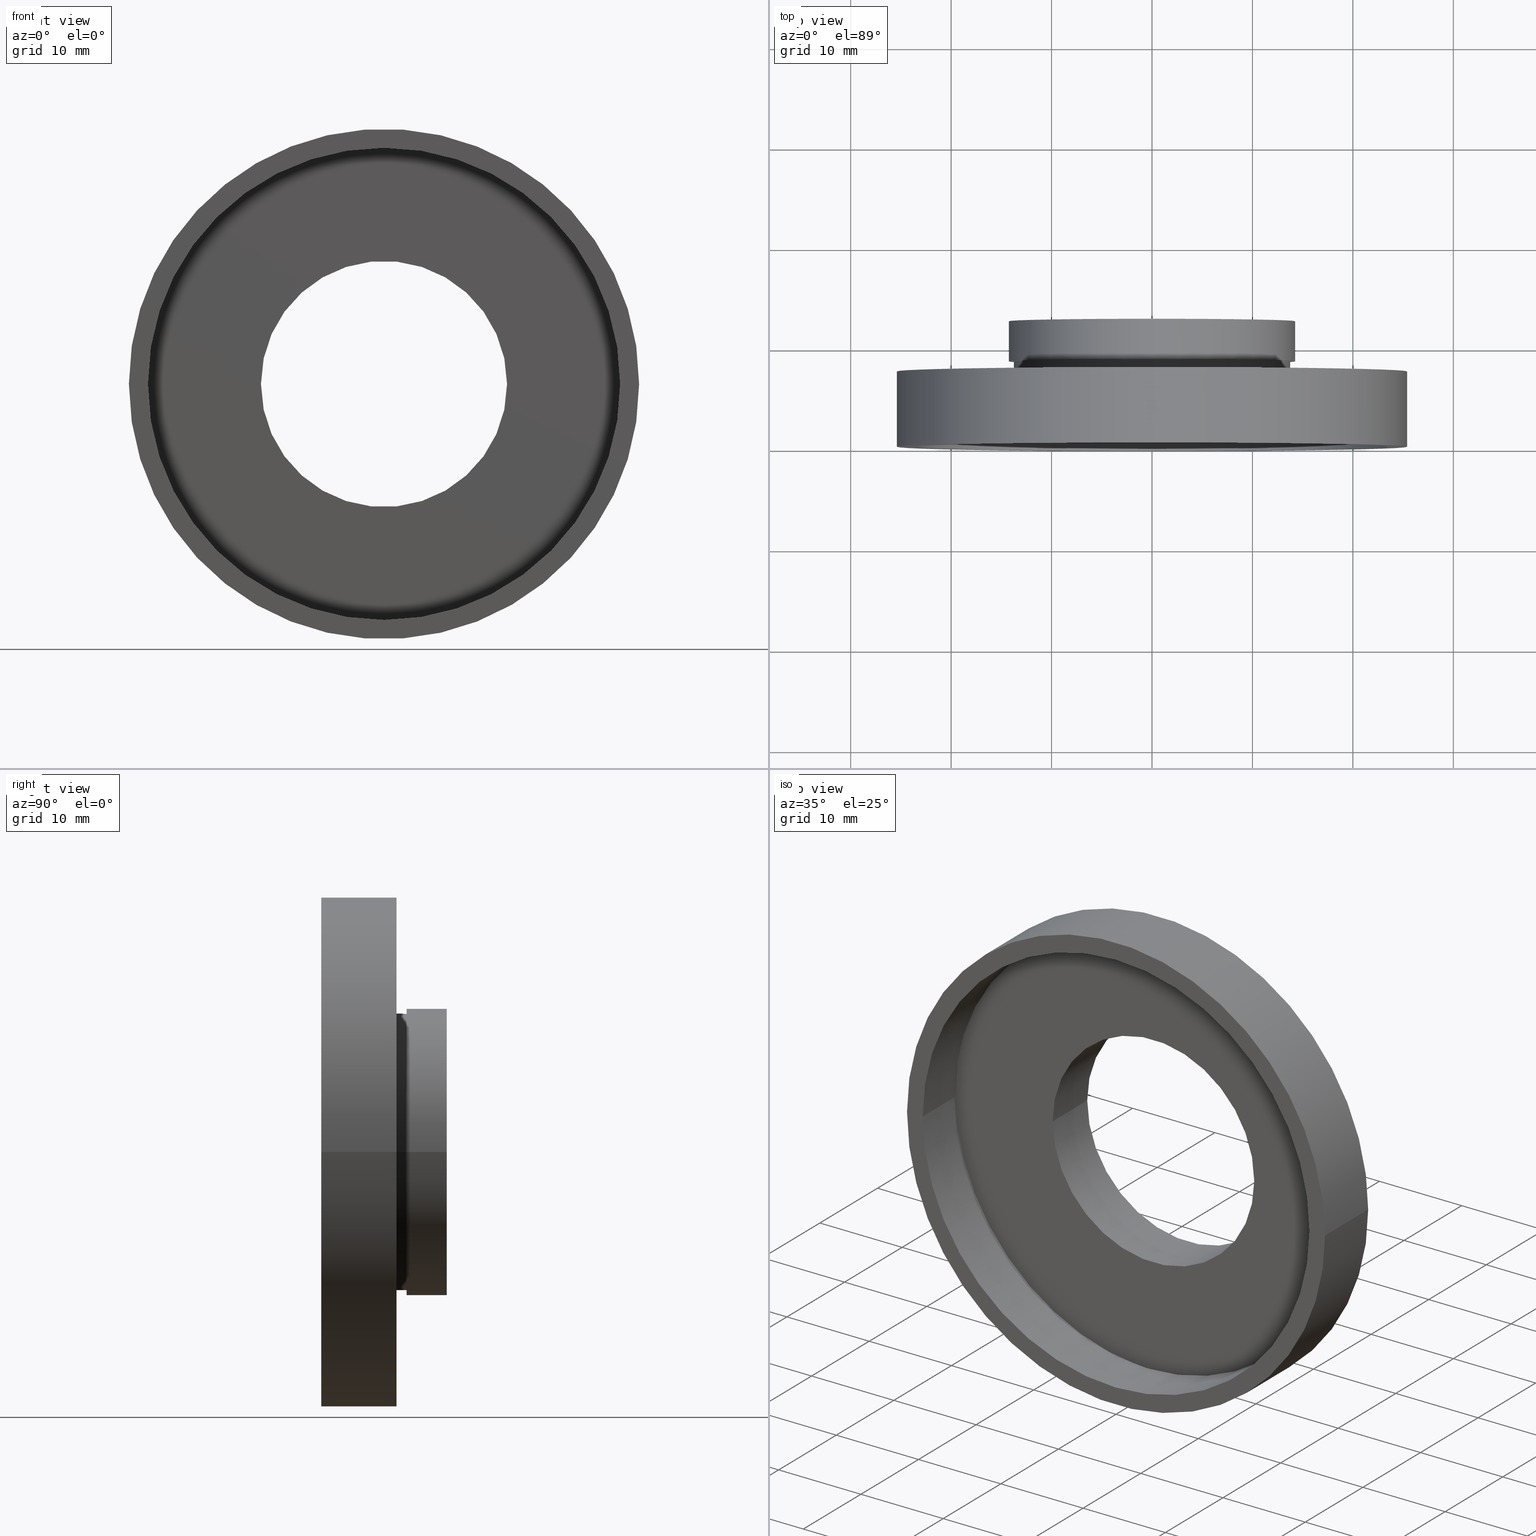
[diagram: canonical four-view strip — front | top / right | iso, engineering-drawing reading convention]
A machine part, canonical four-view strip (front | top / right | iso — engineering-drawing reading convention). The complete STEP part file that produces these views, byte-faithful:
ISO-10303-21;
HEADER;
FILE_DESCRIPTION (( 'STEP AP214' ),
    '1' );
FILE_NAME ('504024.STEP',
    '2019-09-30T09:07:26',
    ( 'user' ),
    ( '΢���й�' ),
    'SwSTEP 2.0',
    'SolidWorks 2016',
    '' );
FILE_SCHEMA (( 'AUTOMOTIVE_DESIGN' ));
ENDSEC;

DATA;
#1 = AXIS2_PLACEMENT_3D ( 'NONE', #552, #2, #177 ) ;
#2 = DIRECTION ( 'NONE',  ( -1.224646799147351000E-016, 1.000000000000000000, 0.0000000000000000000 ) ) ;
#3 = CARTESIAN_POINT ( 'NONE',  ( -12.24999999999999800, 6.499999999999995600, 0.0000000000000000000 ) ) ;
#4 = MECHANICAL_DESIGN_GEOMETRIC_PRESENTATION_REPRESENTATION (  '', ( #198 ), #471 ) ;
#5 =( NAMED_UNIT ( * ) SI_UNIT ( $, .STERADIAN. ) SOLID_ANGLE_UNIT ( ) );
#6 = EDGE_CURVE ( 'NONE', #390, #296, #148, .T. ) ;
#7 = VERTEX_POINT ( 'NONE', #252 ) ;
#8 = EDGE_LOOP ( 'NONE', ( #214, #319 ) ) ;
#9 = LINE ( 'NONE', #565, #360 ) ;
#10 = COLOUR_RGB ( '',1.000000000000000000, 1.000000000000000000, 1.000000000000000000 ) ;
#11 = CARTESIAN_POINT ( 'NONE',  ( 1.149455719078123100E-015, 7.499999999999996400, 0.0000000000000000000 ) ) ;
#12 = EDGE_CURVE ( 'NONE', #305, #146, #103, .T. ) ;
#13 = DIRECTION ( 'NONE',  ( 1.000000000000000000, 0.0000000000000000000, 0.0000000000000000000 ) ) ;
#14 = PRESENTATION_LAYER_ASSIGNMENT (  '', '', ( #52 ) ) ;
#15 = EDGE_LOOP ( 'NONE', ( #510, #473 ) ) ;
#16 = FILL_AREA_STYLE ('',( #265 ) ) ;
#17 = CIRCLE ( 'NONE', #264, 24.10000000000000100 ) ;
#18 = DIRECTION ( 'NONE',  ( -1.000000000000000000, -1.224646799147351200E-016, 0.0000000000000000000 ) ) ;
#19 = CARTESIAN_POINT ( 'NONE',  ( -13.74999999999999800, 7.499999999999996400, 0.0000000000000000000 ) ) ;
#20 = ADVANCED_FACE ( 'NONE', ( #37 ), #322, .T. ) ;
#21 = SURFACE_SIDE_STYLE ('',( #391 ) ) ;
#22 = DIRECTION ( 'NONE',  ( -1.224646799147351000E-016, 1.000000000000000000, -0.0000000000000000000 ) ) ;
#23 = ORIENTED_EDGE ( 'NONE', *, *, #117, .T. ) ;
#24 = DIRECTION ( 'NONE',  ( -1.000000000000000000, -1.365923996832131600E-016, 0.0000000000000000000 ) ) ;
#25 = EDGE_LOOP ( 'NONE', ( #432, #575, #439, #549 ) ) ;
#26 = AXIS2_PLACEMENT_3D ( 'NONE', #413, #232, #579 ) ;
#27 = LINE ( 'NONE', #123, #604 ) ;
#28 = ADVANCED_FACE ( 'NONE', ( #308 ), #169, .T. ) ;
#29 = CIRCLE ( 'NONE', #614, 23.50000000000000000 ) ;
#30 =( NAMED_UNIT ( * ) PLANE_ANGLE_UNIT ( ) SI_UNIT ( $, .RADIAN. ) );
#31 = ADVANCED_FACE ( 'NONE', ( #318, #92 ), #33, .F. ) ;
#32 = DIRECTION ( 'NONE',  ( -1.224646799147351000E-016, 1.000000000000000000, -0.0000000000000000000 ) ) ;
#33 = PLANE ( 'NONE',  #341 ) ;
#34 = CARTESIAN_POINT ( 'NONE',  ( 0.0000000000000000000, 16.88601823708207700, 0.0000000000000000000 ) ) ;
#35 = UNCERTAINTY_MEASURE_WITH_UNIT (LENGTH_MEASURE( 1.000000000000000100E-005 ), #237, 'distance_accuracy_value', 'NONE');
#36 = EDGE_CURVE ( 'NONE', #296, #390, #270, .T. ) ;
#37 = FACE_OUTER_BOUND ( 'NONE', #486, .T. ) ;
#38 = EDGE_CURVE ( 'NONE', #445, #216, #511, .T. ) ;
#39 = ORIENTED_EDGE ( 'NONE', *, *, #6, .F. ) ;
#40 = STYLED_ITEM ( 'NONE', ( #61 ), #536 ) ;
#41 = FACE_OUTER_BOUND ( 'NONE', #358, .T. ) ;
#42 = DIRECTION ( 'NONE',  ( -1.224646799147351000E-016, 1.000000000000000000, 0.0000000000000000000 ) ) ;
#43 = EDGE_CURVE ( 'NONE', #410, #102, #243, .T. ) ;
#44 = CIRCLE ( 'NONE', #583, 13.75000000000000000 ) ;
#45 = DIRECTION ( 'NONE',  ( -1.224646799147351000E-016, 1.000000000000000000, -0.0000000000000000000 ) ) ;
#46 = ADVANCED_BREP_SHAPE_REPRESENTATION ( '504024', ( #384, #367 ), #485 ) ;
#47 = DIRECTION ( 'NONE',  ( -1.224646799147351000E-016, 1.000000000000000000, -0.0000000000000000000 ) ) ;
#48 = FILL_AREA_STYLE_COLOUR ( '', #10 ) ;
#49 =( LENGTH_UNIT ( ) NAMED_UNIT ( * ) SI_UNIT ( .MILLI., .METRE. ) );
#50 = EDGE_CURVE ( 'NONE', #354, #461, #590, .T. ) ;
#51 = EDGE_LOOP ( 'NONE', ( #424, #327, #386, #474 ) ) ;
#52 = STYLED_ITEM ( 'NONE', ( #77 ), #488 ) ;
#53 = CYLINDRICAL_SURFACE ( 'NONE', #449, 12.25000000000000000 ) ;
#54 = CARTESIAN_POINT ( 'NONE',  ( 0.0000000000000000000, 16.88601823708207700, 0.0000000000000000000 ) ) ;
#55 = EDGE_CURVE ( 'NONE', #305, #106, #469, .T. ) ;
#56 = PLANE ( 'NONE',  #325 ) ;
#57 = EDGE_CURVE ( 'NONE', #233, #102, #492, .T. ) ;
#58 = DIRECTION ( 'NONE',  ( -1.224646799147351000E-016, 1.000000000000000000, -0.0000000000000000000 ) ) ;
#59 = CIRCLE ( 'NONE', #436, 24.10000000000000100 ) ;
#60 = CARTESIAN_POINT ( 'NONE',  ( 23.50000000000000700, 5.499999999999999100, 2.877919977996281100E-015 ) ) ;
#61 = PRESENTATION_STYLE_ASSIGNMENT (( #416 ) ) ;
#62 = AXIS2_PLACEMENT_3D ( 'NONE', #129, #240, #82 ) ;
#63 = ADVANCED_FACE ( 'NONE', ( #466 ), #297, .T. ) ;
#64 = DIRECTION ( 'NONE',  ( 1.224646799147351000E-016, -1.000000000000000000, 0.0000000000000000000 ) ) ;
#65 = DIRECTION ( 'NONE',  ( -1.224646799147351000E-016, 1.000000000000000000, -0.0000000000000000000 ) ) ;
#66 =( NAMED_UNIT ( * ) PLANE_ANGLE_UNIT ( ) SI_UNIT ( $, .RADIAN. ) );
#67 = CARTESIAN_POINT ( 'NONE',  ( 1.394385078907593400E-015, 5.499999999999994700, 0.0000000000000000000 ) ) ;
#68 = ORIENTED_EDGE ( 'NONE', *, *, #491, .F. ) ;
#69 = FACE_OUTER_BOUND ( 'NONE', #380, .T. ) ;
#70 = ORIENTED_EDGE ( 'NONE', *, *, #100, .T. ) ;
#71 = EDGE_CURVE ( 'NONE', #138, #269, #476, .T. ) ;
#72 = EDGE_CURVE ( 'NONE', #525, #410, #59, .T. ) ;
#73 = CARTESIAN_POINT ( 'NONE',  ( 0.0000000000000000000, 16.88601823708207700, 0.0000000000000000000 ) ) ;
#74 = CARTESIAN_POINT ( 'NONE',  ( 1.271920398992858200E-015, 6.499999999999995600, 0.0000000000000000000 ) ) ;
#75 = AXIS2_PLACEMENT_3D ( 'NONE', #420, #246, #187 ) ;
#76 = ORIENTED_EDGE ( 'NONE', *, *, #50, .F. ) ;
#77 = PRESENTATION_STYLE_ASSIGNMENT (( #603 ) ) ;
#78 = DIRECTION ( 'NONE',  ( -1.224646799147351000E-016, 1.000000000000000000, -0.0000000000000000000 ) ) ;
#79 = EDGE_CURVE ( 'NONE', #146, #248, #223, .T. ) ;
#80 = DIRECTION ( 'NONE',  ( -1.000000000000000000, -1.365923996832131600E-016, 0.0000000000000000000 ) ) ;
#81 = ADVANCED_FACE ( 'NONE', ( #41 ), #381, .T. ) ;
#82 = DIRECTION ( 'NONE',  ( -1.000000000000000000, -1.476360405086644300E-016, 0.0000000000000000000 ) ) ;
#83 = DIRECTION ( 'NONE',  ( 1.224646799147351000E-016, -1.000000000000000000, 0.0000000000000000000 ) ) ;
#84 = ORIENTED_EDGE ( 'NONE', *, *, #253, .F. ) ;
#85 = EDGE_CURVE ( 'NONE', #538, #182, #175, .T. ) ;
#86 = DIRECTION ( 'NONE',  ( -1.000000000000000000, -1.416100796715760600E-016, 0.0000000000000000000 ) ) ;
#87 = ORIENTED_EDGE ( 'NONE', *, *, #447, .F. ) ;
#88 = PLANE ( 'NONE',  #1 ) ;
#89 = AXIS2_PLACEMENT_3D ( 'NONE', #574, #588, #596 ) ;
#90 = CARTESIAN_POINT ( 'NONE',  ( 1.394385078907593200E-015, 5.499999999999996400, 0.0000000000000000000 ) ) ;
#91 = CARTESIAN_POINT ( 'NONE',  ( -13.75000000000000000, 16.88601823708207700, 0.0000000000000000000 ) ) ;
#92 = FACE_OUTER_BOUND ( 'NONE', #516, .T. ) ;
#93 = CARTESIAN_POINT ( 'NONE',  ( 1.149455719078122700E-015, 7.499999999999998200, 0.0000000000000000000 ) ) ;
#94 = STYLED_ITEM ( 'NONE', ( #517 ), #607 ) ;
#95 = CARTESIAN_POINT ( 'NONE',  ( 1.026991039163387700E-015, 8.499999999999998200, 0.0000000000000000000 ) ) ;
#96 = ORIENTED_EDGE ( 'NONE', *, *, #85, .F. ) ;
#97 = FACE_OUTER_BOUND ( 'NONE', #51, .T. ) ;
#98 = COLOUR_RGB ( '',1.000000000000000000, 1.000000000000000000, 1.000000000000000000 ) ;
#99 = VECTOR ( 'NONE', #435, 1000.000000000000000 ) ;
#100 = EDGE_CURVE ( 'NONE', #115, #417, #576, .T. ) ;
#101 = CARTESIAN_POINT ( 'NONE',  ( 25.39999999999999900, 16.88601823708208000, 3.110602869834276900E-015 ) ) ;
#102 = VERTEX_POINT ( 'NONE', #218 ) ;
#103 = LINE ( 'NONE', #535, #306 ) ;
#104 = AXIS2_PLACEMENT_3D ( 'NONE', #314, #45, #581 ) ;
#105 = CIRCLE ( 'NONE', #392, 14.25000000000000200 ) ;
#106 = VERTEX_POINT ( 'NONE', #19 ) ;
#107 = DIRECTION ( 'NONE',  ( -1.224646799147351000E-016, 1.000000000000000000, -0.0000000000000000000 ) ) ;
#108 =( NAMED_UNIT ( * ) SI_UNIT ( $, .STERADIAN. ) SOLID_ANGLE_UNIT ( ) );
#109 = ORIENTED_EDGE ( 'NONE', *, *, #79, .F. ) ;
#110 = EDGE_LOOP ( 'NONE', ( #399, #168 ) ) ;
#111 = DIRECTION ( 'NONE',  ( -1.224646799147351000E-016, 1.000000000000000000, -0.0000000000000000000 ) ) ;
#112 = UNCERTAINTY_MEASURE_WITH_UNIT (LENGTH_MEASURE( 1.000000000000000100E-005 ), #397, 'distance_accuracy_value', 'NONE');
#113 = VECTOR ( 'NONE', #515, 1000.000000000000000 ) ;
#114 = EDGE_CURVE ( 'NONE', #106, #305, #44, .T. ) ;
#115 = VERTEX_POINT ( 'NONE', #594 ) ;
#116 = FILL_AREA_STYLE ('',( #368 ) ) ;
#117 = EDGE_CURVE ( 'NONE', #417, #269, #208, .T. ) ;
#118 =( NAMED_UNIT ( * ) SI_UNIT ( $, .STERADIAN. ) SOLID_ANGLE_UNIT ( ) );
#119 = DIRECTION ( 'NONE',  ( -1.224646799147351000E-016, 1.000000000000000000, -0.0000000000000000000 ) ) ;
#120 = CARTESIAN_POINT ( 'NONE',  ( -23.50000000000000000, 16.88601823708207300, 0.0000000000000000000 ) ) ;
#121 = SURFACE_SIDE_STYLE ('',( #345 ) ) ;
#122 = EDGE_CURVE ( 'NONE', #216, #390, #139, .T. ) ;
#123 = CARTESIAN_POINT ( 'NONE',  ( -25.39999999999999900, 16.88601823708207300, 0.0000000000000000000 ) ) ;
#124 = DIRECTION ( 'NONE',  ( -1.224646799147351000E-016, 1.000000000000000000, -0.0000000000000000000 ) ) ;
#125 = PRESENTATION_STYLE_ASSIGNMENT (( #545 ) ) ;
#126 = ORIENTED_EDGE ( 'NONE', *, *, #114, .F. ) ;
#127 = FACE_BOUND ( 'NONE', #110, .T. ) ;
#128 = ORIENTED_EDGE ( 'NONE', *, *, #43, .F. ) ;
#129 = CARTESIAN_POINT ( 'NONE',  ( 0.0000000000000000000, 16.88601823708207700, 0.0000000000000000000 ) ) ;
#130 = FILL_AREA_STYLE ('',( #503 ) ) ;
#131 =( NAMED_UNIT ( * ) SI_UNIT ( $, .STERADIAN. ) SOLID_ANGLE_UNIT ( ) );
#132 = FILL_AREA_STYLE_COLOUR ( '', #98 ) ;
#133 = CARTESIAN_POINT ( 'NONE',  ( 14.25000000000000400, 8.500000000000000000, 0.0000000000000000000 ) ) ;
#134 = EDGE_CURVE ( 'NONE', #445, #296, #27, .T. ) ;
#135 = DIRECTION ( 'NONE',  ( -1.224646799147351000E-016, 1.000000000000000000, -0.0000000000000000000 ) ) ;
#136 = STYLED_ITEM ( 'NONE', ( #278 ), #20 ) ;
#137 = SURFACE_STYLE_FILL_AREA ( #238 ) ;
#138 = VERTEX_POINT ( 'NONE', #421 ) ;
#139 = LINE ( 'NONE', #101, #210 ) ;
#140 = DIRECTION ( 'NONE',  ( -1.000000000000000000, -1.079703408284319800E-016, 0.0000000000000000000 ) ) ;
#141 = CARTESIAN_POINT ( 'NONE',  ( 0.0000000000000000000, 16.88601823708207700, 0.0000000000000000000 ) ) ;
#142 = AXIS2_PLACEMENT_3D ( 'NONE', #519, #342, #180 ) ;
#143 = ADVANCED_FACE ( 'NONE', ( #97 ), #203, .F. ) ;
#144 = CARTESIAN_POINT ( 'NONE',  ( 2.067940818438636500E-015, -3.469446951953614200E-015, 0.0000000000000000000 ) ) ;
#145 = UNCERTAINTY_MEASURE_WITH_UNIT (LENGTH_MEASURE( 1.000000000000000100E-005 ), #293, 'distance_accuracy_value', 'NONE');
#146 = VERTEX_POINT ( 'NONE', #166 ) ;
#147 = VERTEX_POINT ( 'NONE', #3 ) ;
#148 = CIRCLE ( 'NONE', #151, 25.39999999999999900 ) ;
#149 = ADVANCED_FACE ( 'NONE', ( #562, #533 ), #618, .F. ) ;
#150 = DIRECTION ( 'NONE',  ( -1.000000000000000000, 0.0000000000000000000, 0.0000000000000000000 ) ) ;
#151 = AXIS2_PLACEMENT_3D ( 'NONE', #548, #505, #534 ) ;
#152 = AXIS2_PLACEMENT_3D ( 'NONE', #463, #315, #407 ) ;
#153 =( NAMED_UNIT ( * ) PLANE_ANGLE_UNIT ( ) SI_UNIT ( $, .RADIAN. ) );
#154 = PRODUCT_DEFINITION_CONTEXT ( 'detailed design', #428, 'design' ) ;
#155 = COLOUR_RGB ( '',1.000000000000000000, 1.000000000000000000, 1.000000000000000000 ) ;
#156 = VERTEX_POINT ( 'NONE', #60 ) ;
#157 = CIRCLE ( 'NONE', #245, 12.25000000000000000 ) ;
#158 = FILL_AREA_STYLE ('',( #385 ) ) ;
#159 = EDGE_CURVE ( 'NONE', #115, #138, #624, .T. ) ;
#160 = ORIENTED_EDGE ( 'NONE', *, *, #613, .T. ) ;
#161 = EDGE_LOOP ( 'NONE', ( #343, #350 ) ) ;
#162 = VECTOR ( 'NONE', #78, 1000.000000000000000 ) ;
#163 = VECTOR ( 'NONE', #470, 1000.000000000000000 ) ;
#164 = UNCERTAINTY_MEASURE_WITH_UNIT (LENGTH_MEASURE( 1.000000000000000100E-005 ), #478, 'distance_accuracy_value', 'NONE');
#165 = PRODUCT_RELATED_PRODUCT_CATEGORY ( 'part', '', ( #361 ) ) ;
#166 = CARTESIAN_POINT ( 'NONE',  ( 13.75000000000000200, 8.500000000000000000, 1.683889348827610700E-015 ) ) ;
#167 = DIRECTION ( 'NONE',  ( -1.000000000000000000, -1.079703408284319800E-016, 0.0000000000000000000 ) ) ;
#168 = ORIENTED_EDGE ( 'NONE', *, *, #592, .F. ) ;
#169 = CYLINDRICAL_SURFACE ( 'NONE', #299, 25.39999999999999900 ) ;
#170 = AXIS2_PLACEMENT_3D ( 'NONE', #481, #570, #183 ) ;
#171 = PRODUCT_DEFINITION ( 'δ֪', '', #302, #154 ) ;
#172 = ORIENTED_EDGE ( 'NONE', *, *, #412, .T. ) ;
#173 = DIRECTION ( 'NONE',  ( -1.000000000000000000, 0.0000000000000000000, 0.0000000000000000000 ) ) ;
#174 = ORIENTED_EDGE ( 'NONE', *, *, #57, .F. ) ;
#175 = LINE ( 'NONE', #572, #542 ) ;
#176 = CARTESIAN_POINT ( 'NONE',  ( 25.39999999999999900, 7.500000000000000000, 3.110602869834276900E-015 ) ) ;
#177 = DIRECTION ( 'NONE',  ( -1.000000000000000000, -1.224646799147351000E-016, 0.0000000000000000000 ) ) ;
#178 = CARTESIAN_POINT ( 'NONE',  ( -13.74999999999999800, 8.499999999999996400, 0.0000000000000000000 ) ) ;
#179 = UNCERTAINTY_MEASURE_WITH_UNIT (LENGTH_MEASURE( 1.000000000000000100E-005 ), #500, 'distance_accuracy_value', 'NONE');
#180 = DIRECTION ( 'NONE',  ( -1.000000000000000000, -1.416100796715760600E-016, 0.0000000000000000000 ) ) ;
#181 = EDGE_CURVE ( 'NONE', #410, #525, #569, .T. ) ;
#182 = VERTEX_POINT ( 'NONE', #504 ) ;
#183 = DIRECTION ( 'NONE',  ( -1.000000000000000000, -1.224646799147351000E-016, 0.0000000000000000000 ) ) ;
#184 = SURFACE_STYLE_FILL_AREA ( #16 ) ;
#185 = DIRECTION ( 'NONE',  ( -1.224646799147351000E-016, 1.000000000000000000, -0.0000000000000000000 ) ) ;
#186 = SHAPE_DEFINITION_REPRESENTATION ( #615, #46 ) ;
#187 = DIRECTION ( 'NONE',  ( -1.000000000000000000, -1.439604544379092800E-016, 0.0000000000000000000 ) ) ;
#188 = CARTESIAN_POINT ( 'NONE',  ( 24.10000000000000100, 16.88601823708208000, 2.951398785945121300E-015 ) ) ;
#189 = EDGE_LOOP ( 'NONE', ( #126, #501 ) ) ;
#190 = EDGE_CURVE ( 'NONE', #538, #147, #612, .T. ) ;
#191 = CARTESIAN_POINT ( 'NONE',  ( 0.0000000000000000000, 16.88601823708207700, 0.0000000000000000000 ) ) ;
#192 = ORIENTED_EDGE ( 'NONE', *, *, #348, .F. ) ;
#193 = VECTOR ( 'NONE', #135, 1000.000000000000000 ) ;
#194 = ORIENTED_EDGE ( 'NONE', *, *, #253, .T. ) ;
#195 = FACE_OUTER_BOUND ( 'NONE', #335, .T. ) ;
#196 = DIRECTION ( 'NONE',  ( -1.224646799147351000E-016, 1.000000000000000000, -0.0000000000000000000 ) ) ;
#197 = ADVANCED_FACE ( 'NONE', ( #320 ), #543, .T. ) ;
#198 = STYLED_ITEM ( 'NONE', ( #557 ), #46 ) ;
#199 = MECHANICAL_DESIGN_GEOMETRIC_PRESENTATION_REPRESENTATION (  '', ( #221 ), #207 ) ;
#200 = FILL_AREA_STYLE ('',( #132 ) ) ;
#201 = SURFACE_STYLE_FILL_AREA ( #200 ) ;
#202 = CARTESIAN_POINT ( 'NONE',  ( -14.25000000000000200, 12.49999999999999500, 0.0000000000000000000 ) ) ;
#203 = CYLINDRICAL_SURFACE ( 'NONE', #460, 23.50000000000000000 ) ;
#204 = SURFACE_SIDE_STYLE ('',( #339 ) ) ;
#205 = CARTESIAN_POINT ( 'NONE',  ( 1.271920398992858000E-015, 6.499999999999997300, 0.0000000000000000000 ) ) ;
#206 = UNCERTAINTY_MEASURE_WITH_UNIT (LENGTH_MEASURE( 1.000000000000000100E-005 ), #537, 'distance_accuracy_value', 'NONE');
#207 =( GEOMETRIC_REPRESENTATION_CONTEXT ( 3 ) GLOBAL_UNCERTAINTY_ASSIGNED_CONTEXT ( ( #35 ) ) GLOBAL_UNIT_ASSIGNED_CONTEXT ( ( #237, #276, #5 ) ) REPRESENTATION_CONTEXT ( 'NONE', 'WORKASPACE' ) );
#208 = CIRCLE ( 'NONE', #571, 14.25000000000000200 ) ;
#209 = FACE_OUTER_BOUND ( 'NONE', #558, .T. ) ;
#210 = VECTOR ( 'NONE', #328, 1000.000000000000000 ) ;
#211 = CARTESIAN_POINT ( 'NONE',  ( 25.39999999999999900, -3.588440821193433400E-016, 3.110602869834276900E-015 ) ) ;
#212 =( NAMED_UNIT ( * ) SI_UNIT ( $, .STERADIAN. ) SOLID_ANGLE_UNIT ( ) );
#213 = DIRECTION ( 'NONE',  ( 1.000000000000000000, 1.224646799147351000E-016, 0.0000000000000000000 ) ) ;
#214 = ORIENTED_EDGE ( 'NONE', *, *, #159, .F. ) ;
#215 = DIRECTION ( 'NONE',  ( -1.224646799147351000E-016, 1.000000000000000000, -0.0000000000000000000 ) ) ;
#216 = VERTEX_POINT ( 'NONE', #211 ) ;
#217 = EDGE_CURVE ( 'NONE', #147, #7, #363, .T. ) ;
#218 = CARTESIAN_POINT ( 'NONE',  ( 24.10000000000000100, 6.499999999999998200, 2.951398785945121300E-015 ) ) ;
#219 = ORIENTED_EDGE ( 'NONE', *, *, #506, .F. ) ;
#220 = SURFACE_SIDE_STYLE ('',( #184 ) ) ;
#221 = STYLED_ITEM ( 'NONE', ( #528 ), #384 ) ;
#222 = CARTESIAN_POINT ( 'NONE',  ( 1.271920398992858000E-015, 6.499999999999997300, 0.0000000000000000000 ) ) ;
#223 = CIRCLE ( 'NONE', #454, 13.75000000000000000 ) ;
#224 = ORIENTED_EDGE ( 'NONE', *, *, #280, .F. ) ;
#225 = CYLINDRICAL_SURFACE ( 'NONE', #75, 24.10000000000000100 ) ;
#226 = CIRCLE ( 'NONE', #89, 13.75000000000000000 ) ;
#227 = PRESENTATION_LAYER_ASSIGNMENT (  '', '', ( #136 ) ) ;
#228 = DIRECTION ( 'NONE',  ( -1.224646799147351000E-016, 1.000000000000000000, -0.0000000000000000000 ) ) ;
#229 = DIRECTION ( 'NONE',  ( 1.000000000000000000, 1.224646799147351000E-016, 0.0000000000000000000 ) ) ;
#230 = APPLICATION_PROTOCOL_DEFINITION ( 'draft international standard', 'automotive_design', 1998, #294 ) ;
#231 = DIRECTION ( 'NONE',  ( -1.000000000000000000, -1.079703408284319800E-016, 0.0000000000000000000 ) ) ;
#232 = DIRECTION ( 'NONE',  ( -1.224646799147351000E-016, 1.000000000000000000, -0.0000000000000000000 ) ) ;
#233 = VERTEX_POINT ( 'NONE', #333 ) ;
#234 = PRESENTATION_LAYER_ASSIGNMENT (  '', '', ( #221 ) ) ;
#235 =( NAMED_UNIT ( * ) SI_UNIT ( $, .STERADIAN. ) SOLID_ANGLE_UNIT ( ) );
#236 = LINE ( 'NONE', #91, #99 ) ;
#237 =( LENGTH_UNIT ( ) NAMED_UNIT ( * ) SI_UNIT ( .MILLI., .METRE. ) );
#238 = FILL_AREA_STYLE ('',( #336 ) ) ;
#239 = DIRECTION ( 'NONE',  ( -1.224646799147351000E-016, 1.000000000000000000, -0.0000000000000000000 ) ) ;
#240 = DIRECTION ( 'NONE',  ( -1.224646799147351000E-016, 1.000000000000000000, -0.0000000000000000000 ) ) ;
#241 = MECHANICAL_DESIGN_GEOMETRIC_PRESENTATION_REPRESENTATION (  '', ( #136 ), #259 ) ;
#242 = DIRECTION ( 'NONE',  ( -1.224646799147351000E-016, 1.000000000000000000, -0.0000000000000000000 ) ) ;
#243 = LINE ( 'NONE', #188, #388 ) ;
#244 = DIRECTION ( 'NONE',  ( -1.000000000000000000, -1.261617073437678000E-016, 0.0000000000000000000 ) ) ;
#245 = AXIS2_PLACEMENT_3D ( 'NONE', #205, #124, #475 ) ;
#246 = DIRECTION ( 'NONE',  ( -1.224646799147351000E-016, 1.000000000000000000, -0.0000000000000000000 ) ) ;
#247 = DIRECTION ( 'NONE',  ( -1.224646799147351000E-016, 1.000000000000000000, -0.0000000000000000000 ) ) ;
#248 = VERTEX_POINT ( 'NONE', #178 ) ;
#249 =( NAMED_UNIT ( * ) PLANE_ANGLE_UNIT ( ) SI_UNIT ( $, .RADIAN. ) );
#250 = ORIENTED_EDGE ( 'NONE', *, *, #181, .F. ) ;
#251 = CIRCLE ( 'NONE', #26, 23.50000000000000400 ) ;
#252 = CARTESIAN_POINT ( 'NONE',  ( -12.25000000000000200, 12.49999999999999500, 0.0000000000000000000 ) ) ;
#253 = EDGE_CURVE ( 'NONE', #269, #417, #105, .T. ) ;
#254 = AXIS2_PLACEMENT_3D ( 'NONE', #133, #42, #437 ) ;
#255 = EDGE_LOOP ( 'NONE', ( #398, #458 ) ) ;
#256 = FACE_OUTER_BOUND ( 'NONE', #268, .T. ) ;
#257 = ORIENTED_EDGE ( 'NONE', *, *, #43, .T. ) ;
#258 = FACE_BOUND ( 'NONE', #161, .T. ) ;
#259 =( GEOMETRIC_REPRESENTATION_CONTEXT ( 3 ) GLOBAL_UNCERTAINTY_ASSIGNED_CONTEXT ( ( #206 ) ) GLOBAL_UNIT_ASSIGNED_CONTEXT ( ( #537, #249, #334 ) ) REPRESENTATION_CONTEXT ( 'NONE', 'WORKASPACE' ) );
#260 = DIRECTION ( 'NONE',  ( -1.224646799147351000E-016, 1.000000000000000000, -0.0000000000000000000 ) ) ;
#261 = ADVANCED_FACE ( 'NONE', ( #127, #453 ), #480, .F. ) ;
#262 = ORIENTED_EDGE ( 'NONE', *, *, #134, .F. ) ;
#263 = FACE_OUTER_BOUND ( 'NONE', #387, .T. ) ;
#264 = AXIS2_PLACEMENT_3D ( 'NONE', #74, #196, #140 ) ;
#265 = FILL_AREA_STYLE_COLOUR ( '', #311 ) ;
#266 = SURFACE_STYLE_USAGE ( .BOTH. , #21 ) ;
#267 = ORIENTED_EDGE ( 'NONE', *, *, #100, .F. ) ;
#268 = EDGE_LOOP ( 'NONE', ( #128, #459, #362, #352 ) ) ;
#269 = VERTEX_POINT ( 'NONE', #295 ) ;
#270 = CIRCLE ( 'NONE', #281, 25.39999999999999900 ) ;
#271 =( LENGTH_UNIT ( ) NAMED_UNIT ( * ) SI_UNIT ( .MILLI., .METRE. ) );
#272 = AXIS2_PLACEMENT_3D ( 'NONE', #191, #107, #150 ) ;
#273 = PRESENTATION_LAYER_ASSIGNMENT (  '', '', ( #198 ) ) ;
#274 = CARTESIAN_POINT ( 'NONE',  ( -23.49999999999999600, -6.347366929949889400E-015, 0.0000000000000000000 ) ) ;
#275 =( NAMED_UNIT ( * ) SI_UNIT ( $, .STERADIAN. ) SOLID_ANGLE_UNIT ( ) );
#276 =( NAMED_UNIT ( * ) PLANE_ANGLE_UNIT ( ) SI_UNIT ( $, .RADIAN. ) );
#277 = CARTESIAN_POINT ( 'NONE',  ( 5.371323195044474300E-016, 12.49999999999999600, 0.0000000000000000000 ) ) ;
#278 = PRESENTATION_STYLE_ASSIGNMENT (( #426 ) ) ;
#279 = DIRECTION ( 'NONE',  ( -1.224646799147351000E-016, 1.000000000000000000, -0.0000000000000000000 ) ) ;
#280 = EDGE_CURVE ( 'NONE', #7, #182, #427, .T. ) ;
#281 = AXIS2_PLACEMENT_3D ( 'NONE', #11, #260, #566 ) ;
#282 = DIRECTION ( 'NONE',  ( -1.000000000000000000, -1.224646799147351000E-016, 0.0000000000000000000 ) ) ;
#283 = DIRECTION ( 'NONE',  ( -1.000000000000000000, -1.261617073437678000E-016, 0.0000000000000000000 ) ) ;
#284 = CARTESIAN_POINT ( 'NONE',  ( 0.0000000000000000000, 16.88601823708207700, 0.0000000000000000000 ) ) ;
#285 =( GEOMETRIC_REPRESENTATION_CONTEXT ( 3 ) GLOBAL_UNCERTAINTY_ASSIGNED_CONTEXT ( ( #145 ) ) GLOBAL_UNIT_ASSIGNED_CONTEXT ( ( #293, #30, #275 ) ) REPRESENTATION_CONTEXT ( 'NONE', 'WORKASPACE' ) );
#286 = FACE_BOUND ( 'NONE', #255, .T. ) ;
#287 = EDGE_LOOP ( 'NONE', ( #531, #484 ) ) ;
#288 = ORIENTED_EDGE ( 'NONE', *, *, #280, .T. ) ;
#289 = COLOUR_RGB ( '',1.000000000000000000, 1.000000000000000000, 1.000000000000000000 ) ;
#290 = CARTESIAN_POINT ( 'NONE',  ( 1.026991039163387700E-015, 8.499999999999998200, 0.0000000000000000000 ) ) ;
#291 = CLOSED_SHELL ( 'NONE', ( #63, #197, #20, #330, #396, #536, #487, #143, #261, #443, #307, #488, #31, #607, #375, #81, #149, #28 ) ) ;
#292 = MECHANICAL_DESIGN_GEOMETRIC_PRESENTATION_REPRESENTATION (  '', ( #94 ), #564 ) ;
#293 =( LENGTH_UNIT ( ) NAMED_UNIT ( * ) SI_UNIT ( .MILLI., .METRE. ) );
#294 = APPLICATION_CONTEXT ( 'automotive_design' ) ;
#295 = CARTESIAN_POINT ( 'NONE',  ( 14.25000000000000200, 12.49999999999999800, 1.745121688784978600E-015 ) ) ;
#296 = VERTEX_POINT ( 'NONE', #411 ) ;
#297 = CYLINDRICAL_SURFACE ( 'NONE', #554, 25.39999999999999900 ) ;
#298 = DIRECTION ( 'NONE',  ( -1.224646799147351000E-016, 1.000000000000000000, -0.0000000000000000000 ) ) ;
#299 = AXIS2_PLACEMENT_3D ( 'NONE', #620, #304, #24 ) ;
#300 = PRESENTATION_LAYER_ASSIGNMENT (  '', '', ( #332 ) ) ;
#301 = EDGE_LOOP ( 'NONE', ( #405, #477 ) ) ;
#302 = PRODUCT_DEFINITION_FORMATION_WITH_SPECIFIED_SOURCE ( '�κ�', '', #361, .NOT_KNOWN. ) ;
#303 = ORIENTED_EDGE ( 'NONE', *, *, #159, .T. ) ;
#304 = DIRECTION ( 'NONE',  ( -1.224646799147351000E-016, 1.000000000000000000, -0.0000000000000000000 ) ) ;
#305 = VERTEX_POINT ( 'NONE', #393 ) ;
#306 = VECTOR ( 'NONE', #47, 1000.000000000000000 ) ;
#307 = ADVANCED_FACE ( 'NONE', ( #69, #446 ), #56, .F. ) ;
#308 = FACE_OUTER_BOUND ( 'NONE', #372, .T. ) ;
#309 = AXIS2_PLACEMENT_3D ( 'NONE', #284, #617, #344 ) ;
#310 = ORIENTED_EDGE ( 'NONE', *, *, #592, .T. ) ;
#311 = COLOUR_RGB ( '',1.000000000000000000, 1.000000000000000000, 1.000000000000000000 ) ;
#312 = DIRECTION ( 'NONE',  ( -1.000000000000000000, -1.217349807703022400E-016, 0.0000000000000000000 ) ) ;
#313 = MECHANICAL_DESIGN_GEOMETRIC_PRESENTATION_REPRESENTATION (  '', ( #332 ), #285 ) ;
#314 = CARTESIAN_POINT ( 'NONE',  ( 0.0000000000000000000, 16.88601823708207700, 0.0000000000000000000 ) ) ;
#315 = DIRECTION ( 'NONE',  ( -1.224646799147351000E-016, 1.000000000000000000, -0.0000000000000000000 ) ) ;
#316 = CARTESIAN_POINT ( 'NONE',  ( -25.39999999999999100, -6.580049821787884700E-015, 0.0000000000000000000 ) ) ;
#317 = DIRECTION ( 'NONE',  ( 1.224646799147351000E-016, -1.000000000000000000, 0.0000000000000000000 ) ) ;
#318 = FACE_BOUND ( 'NONE', #414, .T. ) ;
#319 = ORIENTED_EDGE ( 'NONE', *, *, #464, .F. ) ;
#320 = FACE_OUTER_BOUND ( 'NONE', #440, .T. ) ;
#321 = EDGE_CURVE ( 'NONE', #338, #156, #326, .T. ) ;
#322 = CYLINDRICAL_SURFACE ( 'NONE', #309, 14.25000000000000200 ) ;
#323 = DIRECTION ( 'NONE',  ( -1.224646799147351000E-016, 1.000000000000000000, -0.0000000000000000000 ) ) ;
#324 =( NAMED_UNIT ( * ) PLANE_ANGLE_UNIT ( ) SI_UNIT ( $, .RADIAN. ) );
#325 = AXIS2_PLACEMENT_3D ( 'NONE', #371, #374, #349 ) ;
#326 = CIRCLE ( 'NONE', #355, 23.50000000000000400 ) ;
#327 = ORIENTED_EDGE ( 'NONE', *, *, #605, .F. ) ;
#328 = DIRECTION ( 'NONE',  ( -1.224646799147351000E-016, 1.000000000000000000, -0.0000000000000000000 ) ) ;
#329 = ORIENTED_EDGE ( 'NONE', *, *, #36, .T. ) ;
#330 = ADVANCED_FACE ( 'NONE', ( #568 ), #400, .F. ) ;
#331 = COLOUR_RGB ( '',1.000000000000000000, 1.000000000000000000, 1.000000000000000000 ) ;
#332 = STYLED_ITEM ( 'NONE', ( #409 ), #330 ) ;
#333 = CARTESIAN_POINT ( 'NONE',  ( -24.10000000000000100, 6.499999999999992900, 0.0000000000000000000 ) ) ;
#334 =( NAMED_UNIT ( * ) SI_UNIT ( $, .STERADIAN. ) SOLID_ANGLE_UNIT ( ) );
#335 = EDGE_LOOP ( 'NONE', ( #76, #560, #310, #219 ) ) ;
#336 = FILL_AREA_STYLE_COLOUR ( '', #289 ) ;
#337 = ORIENTED_EDGE ( 'NONE', *, *, #134, .T. ) ;
#338 = VERTEX_POINT ( 'NONE', #434 ) ;
#339 = SURFACE_STYLE_FILL_AREA ( #130 ) ;
#340 = ORIENTED_EDGE ( 'NONE', *, *, #12, .T. ) ;
#341 = AXIS2_PLACEMENT_3D ( 'NONE', #616, #64, #520 ) ;
#342 = DIRECTION ( 'NONE',  ( -1.224646799147351000E-016, 1.000000000000000000, -0.0000000000000000000 ) ) ;
#343 = ORIENTED_EDGE ( 'NONE', *, *, #605, .T. ) ;
#344 = DIRECTION ( 'NONE',  ( -1.000000000000000000, -2.434699615406044700E-016, 0.0000000000000000000 ) ) ;
#345 = SURFACE_STYLE_FILL_AREA ( #599 ) ;
#346 = ORIENTED_EDGE ( 'NONE', *, *, #348, .T. ) ;
#347 = DIRECTION ( 'NONE',  ( -1.224646799147351000E-016, 1.000000000000000000, -0.0000000000000000000 ) ) ;
#348 = EDGE_CURVE ( 'NONE', #102, #233, #17, .T. ) ;
#349 = DIRECTION ( 'NONE',  ( -1.000000000000000000, -1.224646799147351000E-016, 0.0000000000000000000 ) ) ;
#350 = ORIENTED_EDGE ( 'NONE', *, *, #50, .T. ) ;
#351 = SURFACE_STYLE_USAGE ( .BOTH. , #364 ) ;
#352 = ORIENTED_EDGE ( 'NONE', *, *, #57, .T. ) ;
#353 = CARTESIAN_POINT ( 'NONE',  ( 5.371323195044474300E-016, 12.49999999999999600, 0.0000000000000000000 ) ) ;
#354 = VERTEX_POINT ( 'NONE', #513 ) ;
#355 = AXIS2_PLACEMENT_3D ( 'NONE', #90, #597, #468 ) ;
#356 = CARTESIAN_POINT ( 'NONE',  ( 0.0000000000000000000, 16.88601823708207700, 0.0000000000000000000 ) ) ;
#357 = DIRECTION ( 'NONE',  ( -1.224646799147351000E-016, 1.000000000000000000, -0.0000000000000000000 ) ) ;
#358 = EDGE_LOOP ( 'NONE', ( #441, #623, #160, #109 ) ) ;
#359 = DIRECTION ( 'NONE',  ( -1.224646799147351000E-016, 1.000000000000000000, -0.0000000000000000000 ) ) ;
#360 = VECTOR ( 'NONE', #357, 1000.000000000000000 ) ;
#361 = PRODUCT ( '504024', '504024', '', ( #494 ) ) ;
#362 = ORIENTED_EDGE ( 'NONE', *, *, #491, .T. ) ;
#363 = LINE ( 'NONE', #455, #193 ) ;
#364 = SURFACE_SIDE_STYLE ('',( #451 ) ) ;
#365 = AXIS2_PLACEMENT_3D ( 'NONE', #277, #298, #86 ) ;
#366 = CARTESIAN_POINT ( 'NONE',  ( -24.10000000000000100, 5.499999999999992000, 0.0000000000000000000 ) ) ;
#367 = AXIS2_PLACEMENT_3D ( 'NONE', #555, #551, #13 ) ;
#368 = FILL_AREA_STYLE_COLOUR ( '', #550 ) ;
#369 = DIRECTION ( 'NONE',  ( -1.000000000000000000, -1.261617073437678000E-016, 0.0000000000000000000 ) ) ;
#370 = ORIENTED_EDGE ( 'NONE', *, *, #122, .F. ) ;
#371 = CARTESIAN_POINT ( 'NONE',  ( 12.25000000000000200, 6.499999999999998200, 0.0000000000000000000 ) ) ;
#372 = EDGE_LOOP ( 'NONE', ( #370, #172, #337, #39 ) ) ;
#373 =( LENGTH_UNIT ( ) NAMED_UNIT ( * ) SI_UNIT ( .MILLI., .METRE. ) );
#374 = DIRECTION ( 'NONE',  ( -1.224646799147351000E-016, 1.000000000000000000, 0.0000000000000000000 ) ) ;
#375 = ADVANCED_FACE ( 'NONE', ( #527, #286 ), #377, .F. ) ;
#376 = EDGE_CURVE ( 'NONE', #147, #538, #157, .T. ) ;
#377 = PLANE ( 'NONE',  #254 ) ;
#378 = AXIS2_PLACEMENT_3D ( 'NONE', #490, #83, #229 ) ;
#379 = FILL_AREA_STYLE ('',( #48 ) ) ;
#380 = EDGE_LOOP ( 'NONE', ( #174, #192 ) ) ;
#381 = CYLINDRICAL_SURFACE ( 'NONE', #578, 13.75000000000000000 ) ;
#382 = CARTESIAN_POINT ( 'NONE',  ( 24.10000000000000100, 5.499999999999997300, 2.951398785945121300E-015 ) ) ;
#383 = AXIS2_PLACEMENT_3D ( 'NONE', #611, #619, #495 ) ;
#384 = MANIFOLD_SOLID_BREP ( '��ת1', #291 ) ;
#385 = FILL_AREA_STYLE_COLOUR ( '', #155 ) ;
#386 = ORIENTED_EDGE ( 'NONE', *, *, #506, .T. ) ;
#387 = EDGE_LOOP ( 'NONE', ( #465, #442, #70, #84 ) ) ;
#388 = VECTOR ( 'NONE', #111, 1000.000000000000000 ) ;
#389 = AXIS2_PLACEMENT_3D ( 'NONE', #144, #65, #282 ) ;
#390 = VERTEX_POINT ( 'NONE', #176 ) ;
#391 = SURFACE_STYLE_FILL_AREA ( #379 ) ;
#392 = AXIS2_PLACEMENT_3D ( 'NONE', #353, #22, #394 ) ;
#393 = CARTESIAN_POINT ( 'NONE',  ( 13.75000000000000200, 7.500000000000000000, 1.683889348827610700E-015 ) ) ;
#394 = DIRECTION ( 'NONE',  ( -1.000000000000000000, -1.217349807703022400E-016, 0.0000000000000000000 ) ) ;
#395 = CARTESIAN_POINT ( 'NONE',  ( 1.271920398992858200E-015, 6.499999999999995600, 0.0000000000000000000 ) ) ;
#396 = ADVANCED_FACE ( 'NONE', ( #418 ), #595, .F. ) ;
#397 =( LENGTH_UNIT ( ) NAMED_UNIT ( * ) SI_UNIT ( .MILLI., .METRE. ) );
#398 = ORIENTED_EDGE ( 'NONE', *, *, #482, .T. ) ;
#399 = ORIENTED_EDGE ( 'NONE', *, *, #321, .F. ) ;
#400 = CYLINDRICAL_SURFACE ( 'NONE', #272, 12.25000000000000000 ) ;
#401 = LINE ( 'NONE', #593, #532 ) ;
#402 = AXIS2_PLACEMENT_3D ( 'NONE', #356, #563, #589 ) ;
#403 = DIRECTION ( 'NONE',  ( -1.224646799147351000E-016, 1.000000000000000000, -0.0000000000000000000 ) ) ;
#404 = DIRECTION ( 'NONE',  ( -1.000000000000000000, -1.476360405086644300E-016, 0.0000000000000000000 ) ) ;
#405 = ORIENTED_EDGE ( 'NONE', *, *, #72, .T. ) ;
#406 = ORIENTED_EDGE ( 'NONE', *, *, #376, .F. ) ;
#407 = DIRECTION ( 'NONE',  ( -1.000000000000000000, -1.217349807703022400E-016, 0.0000000000000000000 ) ) ;
#408 = EDGE_LOOP ( 'NONE', ( #329, #502 ) ) ;
#409 = PRESENTATION_STYLE_ASSIGNMENT (( #610 ) ) ;
#410 = VERTEX_POINT ( 'NONE', #382 ) ;
#411 = CARTESIAN_POINT ( 'NONE',  ( -25.39999999999999900, 7.499999999999992900, 0.0000000000000000000 ) ) ;
#412 = EDGE_CURVE ( 'NONE', #216, #445, #622, .T. ) ;
#413 = CARTESIAN_POINT ( 'NONE',  ( 1.394385078907593200E-015, 5.499999999999996400, 0.0000000000000000000 ) ) ;
#414 = EDGE_LOOP ( 'NONE', ( #224, #87 ) ) ;
#415 = EDGE_LOOP ( 'NONE', ( #422, #600, #452, #262 ) ) ;
#416 = SURFACE_STYLE_USAGE ( .BOTH. , #606 ) ;
#417 = VERTEX_POINT ( 'NONE', #202 ) ;
#418 = FACE_OUTER_BOUND ( 'NONE', #526, .T. ) ;
#419 = AXIS2_PLACEMENT_3D ( 'NONE', #222, #119, #483 ) ;
#420 = CARTESIAN_POINT ( 'NONE',  ( 0.0000000000000000000, 16.88601823708207700, 0.0000000000000000000 ) ) ;
#421 = CARTESIAN_POINT ( 'NONE',  ( 14.25000000000000500, 8.500000000000000000, 1.745121688784979000E-015 ) ) ;
#422 = ORIENTED_EDGE ( 'NONE', *, *, #38, .T. ) ;
#423 = AXIS2_PLACEMENT_3D ( 'NONE', #395, #279, #231 ) ;
#424 = ORIENTED_EDGE ( 'NONE', *, *, #512, .F. ) ;
#425 = ORIENTED_EDGE ( 'NONE', *, *, #114, .T. ) ;
#426 = SURFACE_STYLE_USAGE ( .BOTH. , #584 ) ;
#427 = CIRCLE ( 'NONE', #365, 12.25000000000000200 ) ;
#428 = APPLICATION_CONTEXT ( 'automotive_design' ) ;
#429 = CARTESIAN_POINT ( 'NONE',  ( 14.25000000000000200, 16.88601823708208000, 1.745121688784978600E-015 ) ) ;
#430 = AXIS2_PLACEMENT_3D ( 'NONE', #431, #239, #283 ) ;
#431 = CARTESIAN_POINT ( 'NONE',  ( 1.149455719078122700E-015, 7.499999999999998200, 0.0000000000000000000 ) ) ;
#432 = ORIENTED_EDGE ( 'NONE', *, *, #190, .F. ) ;
#433 = DIRECTION ( 'NONE',  ( -1.224646799147351000E-016, 1.000000000000000000, -0.0000000000000000000 ) ) ;
#434 = CARTESIAN_POINT ( 'NONE',  ( -23.50000000000000400, 5.499999999999993800, 0.0000000000000000000 ) ) ;
#435 = DIRECTION ( 'NONE',  ( -1.224646799147351000E-016, 1.000000000000000000, -0.0000000000000000000 ) ) ;
#436 = AXIS2_PLACEMENT_3D ( 'NONE', #577, #403, #621 ) ;
#437 = DIRECTION ( 'NONE',  ( -1.000000000000000000, -1.224646799147351000E-016, 0.0000000000000000000 ) ) ;
#438 = AXIS2_PLACEMENT_3D ( 'NONE', #609, #317, #213 ) ;
#439 = ORIENTED_EDGE ( 'NONE', *, *, #447, .T. ) ;
#440 = EDGE_LOOP ( 'NONE', ( #425, #340, #507, #457 ) ) ;
#441 = ORIENTED_EDGE ( 'NONE', *, *, #12, .F. ) ;
#442 = ORIENTED_EDGE ( 'NONE', *, *, #464, .T. ) ;
#443 = ADVANCED_FACE ( 'NONE', ( #256 ), #225, .F. ) ;
#444 =( NAMED_UNIT ( * ) PLANE_ANGLE_UNIT ( ) SI_UNIT ( $, .RADIAN. ) );
#445 = VERTEX_POINT ( 'NONE', #316 ) ;
#446 = FACE_BOUND ( 'NONE', #287, .T. ) ;
#447 = EDGE_CURVE ( 'NONE', #182, #7, #509, .T. ) ;
#448 = AXIS2_PLACEMENT_3D ( 'NONE', #67, #215, #167 ) ;
#449 = AXIS2_PLACEMENT_3D ( 'NONE', #73, #323, #173 ) ;
#450 =( NAMED_UNIT ( * ) PLANE_ANGLE_UNIT ( ) SI_UNIT ( $, .RADIAN. ) );
#451 = SURFACE_STYLE_FILL_AREA ( #116 ) ;
#452 = ORIENTED_EDGE ( 'NONE', *, *, #36, .F. ) ;
#453 = FACE_OUTER_BOUND ( 'NONE', #301, .T. ) ;
#454 = AXIS2_PLACEMENT_3D ( 'NONE', #95, #228, #244 ) ;
#455 = CARTESIAN_POINT ( 'NONE',  ( -12.25000000000000000, 16.88601823708207700, 0.0000000000000000000 ) ) ;
#456 = CARTESIAN_POINT ( 'NONE',  ( -14.25000000000000200, 16.88601823708207300, 0.0000000000000000000 ) ) ;
#457 = ORIENTED_EDGE ( 'NONE', *, *, #613, .F. ) ;
#458 = ORIENTED_EDGE ( 'NONE', *, *, #79, .T. ) ;
#459 = ORIENTED_EDGE ( 'NONE', *, *, #72, .F. ) ;
#460 = AXIS2_PLACEMENT_3D ( 'NONE', #521, #591, #404 ) ;
#461 = VERTEX_POINT ( 'NONE', #274 ) ;
#462 =( GEOMETRIC_REPRESENTATION_CONTEXT ( 3 ) GLOBAL_UNCERTAINTY_ASSIGNED_CONTEXT ( ( #179 ) ) GLOBAL_UNIT_ASSIGNED_CONTEXT ( ( #500, #450, #131 ) ) REPRESENTATION_CONTEXT ( 'NONE', 'WORKASPACE' ) );
#463 = CARTESIAN_POINT ( 'NONE',  ( 1.026991039163387700E-015, 8.499999999999998200, 0.0000000000000000000 ) ) ;
#464 = EDGE_CURVE ( 'NONE', #138, #115, #586, .T. ) ;
#465 = ORIENTED_EDGE ( 'NONE', *, *, #71, .F. ) ;
#466 = FACE_OUTER_BOUND ( 'NONE', #415, .T. ) ;
#467 = FACE_OUTER_BOUND ( 'NONE', #15, .T. ) ;
#468 = DIRECTION ( 'NONE',  ( -1.000000000000000000, -1.107270303814983000E-016, 0.0000000000000000000 ) ) ;
#469 = CIRCLE ( 'NONE', #430, 13.75000000000000000 ) ;
#470 = DIRECTION ( 'NONE',  ( -1.224646799147351000E-016, 1.000000000000000000, -0.0000000000000000000 ) ) ;
#471 =( GEOMETRIC_REPRESENTATION_CONTEXT ( 3 ) GLOBAL_UNCERTAINTY_ASSIGNED_CONTEXT ( ( #529 ) ) GLOBAL_UNIT_ASSIGNED_CONTEXT ( ( #271, #66, #553 ) ) REPRESENTATION_CONTEXT ( 'NONE', 'WORKASPACE' ) );
#472 = CARTESIAN_POINT ( 'NONE',  ( 12.25000000000000400, 6.499999999999999100, 1.500192328955508100E-015 ) ) ;
#473 = ORIENTED_EDGE ( 'NONE', *, *, #412, .F. ) ;
#474 = ORIENTED_EDGE ( 'NONE', *, *, #321, .T. ) ;
#475 = DIRECTION ( 'NONE',  ( -1.000000000000000000, -1.416100796715760900E-016, 0.0000000000000000000 ) ) ;
#476 = LINE ( 'NONE', #429, #113 ) ;
#477 = ORIENTED_EDGE ( 'NONE', *, *, #181, .T. ) ;
#478 =( LENGTH_UNIT ( ) NAMED_UNIT ( * ) SI_UNIT ( .MILLI., .METRE. ) );
#479 = CYLINDRICAL_SURFACE ( 'NONE', #540, 14.25000000000000200 ) ;
#480 = PLANE ( 'NONE',  #378 ) ;
#481 = CARTESIAN_POINT ( 'NONE',  ( 2.067940818438636500E-015, -3.469446951953614200E-015, 0.0000000000000000000 ) ) ;
#482 = EDGE_CURVE ( 'NONE', #248, #146, #226, .T. ) ;
#483 = DIRECTION ( 'NONE',  ( -1.000000000000000000, -1.416100796715760900E-016, 0.0000000000000000000 ) ) ;
#484 = ORIENTED_EDGE ( 'NONE', *, *, #190, .T. ) ;
#485 =( GEOMETRIC_REPRESENTATION_CONTEXT ( 3 ) GLOBAL_UNCERTAINTY_ASSIGNED_CONTEXT ( ( #112 ) ) GLOBAL_UNIT_ASSIGNED_CONTEXT ( ( #397, #153, #108 ) ) REPRESENTATION_CONTEXT ( 'NONE', 'WORKASPACE' ) );
#486 = EDGE_LOOP ( 'NONE', ( #303, #556, #514, #267 ) ) ;
#487 = ADVANCED_FACE ( 'NONE', ( #467, #258 ), #88, .F. ) ;
#488 = ADVANCED_FACE ( 'NONE', ( #209 ), #53, .F. ) ;
#489 = CARTESIAN_POINT ( 'NONE',  ( 5.371323195044474300E-016, 12.49999999999999600, 0.0000000000000000000 ) ) ;
#490 = CARTESIAN_POINT ( 'NONE',  ( 23.50000000000000400, 5.500000000000000000, 0.0000000000000000000 ) ) ;
#491 = EDGE_CURVE ( 'NONE', #525, #233, #9, .T. ) ;
#492 = CIRCLE ( 'NONE', #423, 24.10000000000000100 ) ;
#493 = CYLINDRICAL_SURFACE ( 'NONE', #62, 23.50000000000000000 ) ;
#494 = PRODUCT_CONTEXT ( 'NONE', #294, 'mechanical' ) ;
#495 = DIRECTION ( 'NONE',  ( -1.000000000000000000, -1.224646799147351200E-016, 0.0000000000000000000 ) ) ;
#496 = LINE ( 'NONE', #120, #162 ) ;
#497 = ORIENTED_EDGE ( 'NONE', *, *, #217, .T. ) ;
#498 = UNCERTAINTY_MEASURE_WITH_UNIT (LENGTH_MEASURE( 1.000000000000000100E-005 ), #49, 'distance_accuracy_value', 'NONE');
#499 = PRESENTATION_LAYER_ASSIGNMENT (  '', '', ( #94 ) ) ;
#500 =( LENGTH_UNIT ( ) NAMED_UNIT ( * ) SI_UNIT ( .MILLI., .METRE. ) );
#501 = ORIENTED_EDGE ( 'NONE', *, *, #55, .F. ) ;
#502 = ORIENTED_EDGE ( 'NONE', *, *, #6, .T. ) ;
#503 = FILL_AREA_STYLE_COLOUR ( '', #331 ) ;
#504 = CARTESIAN_POINT ( 'NONE',  ( 12.25000000000000400, 12.49999999999999800, 1.500192328955508100E-015 ) ) ;
#505 = DIRECTION ( 'NONE',  ( -1.224646799147351000E-016, 1.000000000000000000, -0.0000000000000000000 ) ) ;
#506 = EDGE_CURVE ( 'NONE', #461, #338, #496, .T. ) ;
#507 = ORIENTED_EDGE ( 'NONE', *, *, #482, .F. ) ;
#508 = MECHANICAL_DESIGN_GEOMETRIC_PRESENTATION_REPRESENTATION (  '', ( #52 ), #580 ) ;
#509 = CIRCLE ( 'NONE', #142, 12.25000000000000200 ) ;
#510 = ORIENTED_EDGE ( 'NONE', *, *, #38, .F. ) ;
#511 = CIRCLE ( 'NONE', #389, 25.39999999999999500 ) ;
#512 = EDGE_CURVE ( 'NONE', #354, #156, #401, .T. ) ;
#513 = CARTESIAN_POINT ( 'NONE',  ( 23.50000000000000700, -5.915269739573390000E-016, 2.877919977996281100E-015 ) ) ;
#514 = ORIENTED_EDGE ( 'NONE', *, *, #117, .F. ) ;
#515 = DIRECTION ( 'NONE',  ( -1.224646799147351000E-016, 1.000000000000000000, -0.0000000000000000000 ) ) ;
#516 = EDGE_LOOP ( 'NONE', ( #23, #194 ) ) ;
#517 = PRESENTATION_STYLE_ASSIGNMENT (( #266 ) ) ;
#518 = STYLED_ITEM ( 'NONE', ( #125 ), #143 ) ;
#519 = CARTESIAN_POINT ( 'NONE',  ( 5.371323195044474300E-016, 12.49999999999999600, 0.0000000000000000000 ) ) ;
#520 = DIRECTION ( 'NONE',  ( 1.000000000000000000, 1.224646799147351000E-016, 0.0000000000000000000 ) ) ;
#521 = CARTESIAN_POINT ( 'NONE',  ( 0.0000000000000000000, 16.88601823708207700, 0.0000000000000000000 ) ) ;
#522 =( GEOMETRIC_REPRESENTATION_CONTEXT ( 3 ) GLOBAL_UNCERTAINTY_ASSIGNED_CONTEXT ( ( #164 ) ) GLOBAL_UNIT_ASSIGNED_CONTEXT ( ( #478, #444, #212 ) ) REPRESENTATION_CONTEXT ( 'NONE', 'WORKASPACE' ) );
#523 = MECHANICAL_DESIGN_GEOMETRIC_PRESENTATION_REPRESENTATION (  '', ( #40 ), #462 ) ;
#524 = DIRECTION ( 'NONE',  ( -1.000000000000000000, 0.0000000000000000000, 0.0000000000000000000 ) ) ;
#525 = VERTEX_POINT ( 'NONE', #366 ) ;
#526 = EDGE_LOOP ( 'NONE', ( #250, #257, #346, #68 ) ) ;
#527 = FACE_OUTER_BOUND ( 'NONE', #8, .T. ) ;
#528 = PRESENTATION_STYLE_ASSIGNMENT (( #567 ) ) ;
#529 = UNCERTAINTY_MEASURE_WITH_UNIT (LENGTH_MEASURE( 1.000000000000000100E-005 ), #271, 'distance_accuracy_value', 'NONE');
#530 = PRESENTATION_LAYER_ASSIGNMENT (  '', '', ( #40 ) ) ;
#531 = ORIENTED_EDGE ( 'NONE', *, *, #376, .T. ) ;
#532 = VECTOR ( 'NONE', #242, 1000.000000000000000 ) ;
#533 = FACE_OUTER_BOUND ( 'NONE', #408, .T. ) ;
#534 = DIRECTION ( 'NONE',  ( -1.000000000000000000, -1.365923996832131600E-016, 0.0000000000000000000 ) ) ;
#535 = CARTESIAN_POINT ( 'NONE',  ( 13.75000000000000000, 16.88601823708207700, 1.683889348827610700E-015 ) ) ;
#536 = ADVANCED_FACE ( 'NONE', ( #195 ), #493, .F. ) ;
#537 =( LENGTH_UNIT ( ) NAMED_UNIT ( * ) SI_UNIT ( .MILLI., .METRE. ) );
#538 = VERTEX_POINT ( 'NONE', #472 ) ;
#539 = SURFACE_STYLE_FILL_AREA ( #158 ) ;
#540 = AXIS2_PLACEMENT_3D ( 'NONE', #141, #185, #559 ) ;
#541 = DIRECTION ( 'NONE',  ( -1.000000000000000000, -1.217349807703022400E-016, 0.0000000000000000000 ) ) ;
#542 = VECTOR ( 'NONE', #359, 1000.000000000000000 ) ;
#543 = CYLINDRICAL_SURFACE ( 'NONE', #402, 13.75000000000000000 ) ;
#544 = PRESENTATION_LAYER_ASSIGNMENT (  '', '', ( #518 ) ) ;
#545 = SURFACE_STYLE_USAGE ( .BOTH. , #204 ) ;
#546 = MECHANICAL_DESIGN_GEOMETRIC_PRESENTATION_REPRESENTATION (  '', ( #518 ), #522 ) ;
#547 = UNCERTAINTY_MEASURE_WITH_UNIT (LENGTH_MEASURE( 1.000000000000000100E-005 ), #373, 'distance_accuracy_value', 'NONE');
#548 = CARTESIAN_POINT ( 'NONE',  ( 1.149455719078123100E-015, 7.499999999999996400, 0.0000000000000000000 ) ) ;
#549 = ORIENTED_EDGE ( 'NONE', *, *, #217, .F. ) ;
#550 = COLOUR_RGB ( '',1.000000000000000000, 1.000000000000000000, 1.000000000000000000 ) ;
#551 = DIRECTION ( 'NONE',  ( 0.0000000000000000000, 0.0000000000000000000, 1.000000000000000000 ) ) ;
#552 = CARTESIAN_POINT ( 'NONE',  ( 25.39999999999999900, -1.592040838891564000E-016, 0.0000000000000000000 ) ) ;
#553 =( NAMED_UNIT ( * ) SI_UNIT ( $, .STERADIAN. ) SOLID_ANGLE_UNIT ( ) );
#554 = AXIS2_PLACEMENT_3D ( 'NONE', #34, #433, #80 ) ;
#555 = CARTESIAN_POINT ( 'NONE',  ( 0.0000000000000000000, 0.0000000000000000000, 0.0000000000000000000 ) ) ;
#556 = ORIENTED_EDGE ( 'NONE', *, *, #71, .T. ) ;
#557 = PRESENTATION_STYLE_ASSIGNMENT (( #351 ) ) ;
#558 = EDGE_LOOP ( 'NONE', ( #96, #406, #497, #288 ) ) ;
#559 = DIRECTION ( 'NONE',  ( -1.000000000000000000, -2.434699615406044700E-016, 0.0000000000000000000 ) ) ;
#560 = ORIENTED_EDGE ( 'NONE', *, *, #512, .T. ) ;
#561 = CARTESIAN_POINT ( 'NONE',  ( 2.067940818438636500E-015, -3.469446951953614200E-015, 0.0000000000000000000 ) ) ;
#562 = FACE_BOUND ( 'NONE', #189, .T. ) ;
#563 = DIRECTION ( 'NONE',  ( -1.224646799147351000E-016, 1.000000000000000000, -0.0000000000000000000 ) ) ;
#564 =( GEOMETRIC_REPRESENTATION_CONTEXT ( 3 ) GLOBAL_UNCERTAINTY_ASSIGNED_CONTEXT ( ( #498 ) ) GLOBAL_UNIT_ASSIGNED_CONTEXT ( ( #49, #324, #235 ) ) REPRESENTATION_CONTEXT ( 'NONE', 'WORKASPACE' ) );
#565 = CARTESIAN_POINT ( 'NONE',  ( -24.10000000000000100, 16.88601823708207300, 0.0000000000000000000 ) ) ;
#566 = DIRECTION ( 'NONE',  ( -1.000000000000000000, -1.365923996832131600E-016, 0.0000000000000000000 ) ) ;
#567 = SURFACE_STYLE_USAGE ( .BOTH. , #608 ) ;
#568 = FACE_OUTER_BOUND ( 'NONE', #25, .T. ) ;
#569 = CIRCLE ( 'NONE', #448, 24.10000000000000100 ) ;
#570 = DIRECTION ( 'NONE',  ( -1.224646799147351000E-016, 1.000000000000000000, -0.0000000000000000000 ) ) ;
#571 = AXIS2_PLACEMENT_3D ( 'NONE', #489, #58, #541 ) ;
#572 = CARTESIAN_POINT ( 'NONE',  ( 12.25000000000000000, 16.88601823708207700, 1.500192328955507700E-015 ) ) ;
#573 = AXIS2_PLACEMENT_3D ( 'NONE', #290, #347, #312 ) ;
#574 = CARTESIAN_POINT ( 'NONE',  ( 1.026991039163387700E-015, 8.499999999999998200, 0.0000000000000000000 ) ) ;
#575 = ORIENTED_EDGE ( 'NONE', *, *, #85, .T. ) ;
#576 = LINE ( 'NONE', #456, #163 ) ;
#577 = CARTESIAN_POINT ( 'NONE',  ( 1.394385078907593400E-015, 5.499999999999994700, 0.0000000000000000000 ) ) ;
#578 = AXIS2_PLACEMENT_3D ( 'NONE', #54, #247, #524 ) ;
#579 = DIRECTION ( 'NONE',  ( -1.000000000000000000, -1.107270303814983000E-016, 0.0000000000000000000 ) ) ;
#580 =( GEOMETRIC_REPRESENTATION_CONTEXT ( 3 ) GLOBAL_UNCERTAINTY_ASSIGNED_CONTEXT ( ( #547 ) ) GLOBAL_UNIT_ASSIGNED_CONTEXT ( ( #373, #582, #118 ) ) REPRESENTATION_CONTEXT ( 'NONE', 'WORKASPACE' ) );
#581 = DIRECTION ( 'NONE',  ( -1.000000000000000000, -1.439604544379092800E-016, 0.0000000000000000000 ) ) ;
#582 =( NAMED_UNIT ( * ) PLANE_ANGLE_UNIT ( ) SI_UNIT ( $, .RADIAN. ) );
#583 = AXIS2_PLACEMENT_3D ( 'NONE', #93, #602, #369 ) ;
#584 = SURFACE_SIDE_STYLE ('',( #201 ) ) ;
#585 = COLOUR_RGB ( '',1.000000000000000000, 1.000000000000000000, 1.000000000000000000 ) ;
#586 = CIRCLE ( 'NONE', #152, 14.25000000000000200 ) ;
#587 = APPLICATION_PROTOCOL_DEFINITION ( 'draft international standard', 'automotive_design', 1998, #428 ) ;
#588 = DIRECTION ( 'NONE',  ( -1.224646799147351000E-016, 1.000000000000000000, -0.0000000000000000000 ) ) ;
#589 = DIRECTION ( 'NONE',  ( -1.000000000000000000, 0.0000000000000000000, 0.0000000000000000000 ) ) ;
#590 = CIRCLE ( 'NONE', #383, 23.50000000000000000 ) ;
#591 = DIRECTION ( 'NONE',  ( -1.224646799147351000E-016, 1.000000000000000000, -0.0000000000000000000 ) ) ;
#592 = EDGE_CURVE ( 'NONE', #156, #338, #251, .T. ) ;
#593 = CARTESIAN_POINT ( 'NONE',  ( 23.50000000000000000, 16.88601823708208000, 2.877919977996280300E-015 ) ) ;
#594 = CARTESIAN_POINT ( 'NONE',  ( -14.25000000000000000, 8.499999999999996400, 0.0000000000000000000 ) ) ;
#595 = CYLINDRICAL_SURFACE ( 'NONE', #104, 24.10000000000000100 ) ;
#596 = DIRECTION ( 'NONE',  ( -1.000000000000000000, -1.261617073437678000E-016, 0.0000000000000000000 ) ) ;
#597 = DIRECTION ( 'NONE',  ( -1.224646799147351000E-016, 1.000000000000000000, -0.0000000000000000000 ) ) ;
#598 = DIRECTION ( 'NONE',  ( -1.224646799147351000E-016, 1.000000000000000000, -0.0000000000000000000 ) ) ;
#599 = FILL_AREA_STYLE ('',( #601 ) ) ;
#600 = ORIENTED_EDGE ( 'NONE', *, *, #122, .T. ) ;
#601 = FILL_AREA_STYLE_COLOUR ( '', #585 ) ;
#602 = DIRECTION ( 'NONE',  ( -1.224646799147351000E-016, 1.000000000000000000, -0.0000000000000000000 ) ) ;
#603 = SURFACE_STYLE_USAGE ( .BOTH. , #121 ) ;
#604 = VECTOR ( 'NONE', #598, 1000.000000000000000 ) ;
#605 = EDGE_CURVE ( 'NONE', #461, #354, #29, .T. ) ;
#606 = SURFACE_SIDE_STYLE ('',( #137 ) ) ;
#607 = ADVANCED_FACE ( 'NONE', ( #263 ), #479, .T. ) ;
#608 = SURFACE_SIDE_STYLE ('',( #539 ) ) ;
#609 = CARTESIAN_POINT ( 'NONE',  ( 13.75000000000000200, 7.499999999999999100, 0.0000000000000000000 ) ) ;
#610 = SURFACE_STYLE_USAGE ( .BOTH. , #220 ) ;
#611 = CARTESIAN_POINT ( 'NONE',  ( 2.067940818438636500E-015, -3.469446951953614200E-015, 0.0000000000000000000 ) ) ;
#612 = CIRCLE ( 'NONE', #419, 12.25000000000000000 ) ;
#613 = EDGE_CURVE ( 'NONE', #106, #248, #236, .T. ) ;
#614 = AXIS2_PLACEMENT_3D ( 'NONE', #561, #32, #18 ) ;
#615 = PRODUCT_DEFINITION_SHAPE ( 'NONE', 'NONE',  #171 ) ;
#616 = CARTESIAN_POINT ( 'NONE',  ( 12.25000000000000200, 12.49999999999999800, 0.0000000000000000000 ) ) ;
#617 = DIRECTION ( 'NONE',  ( -1.224646799147351000E-016, 1.000000000000000000, -0.0000000000000000000 ) ) ;
#618 = PLANE ( 'NONE',  #438 ) ;
#619 = DIRECTION ( 'NONE',  ( -1.224646799147351000E-016, 1.000000000000000000, -0.0000000000000000000 ) ) ;
#620 = CARTESIAN_POINT ( 'NONE',  ( 0.0000000000000000000, 16.88601823708207700, 0.0000000000000000000 ) ) ;
#621 = DIRECTION ( 'NONE',  ( -1.000000000000000000, -1.079703408284319800E-016, 0.0000000000000000000 ) ) ;
#622 = CIRCLE ( 'NONE', #170, 25.39999999999999500 ) ;
#623 = ORIENTED_EDGE ( 'NONE', *, *, #55, .T. ) ;
#624 = CIRCLE ( 'NONE', #573, 14.25000000000000200 ) ;
ENDSEC;
END-ISO-10303-21;
